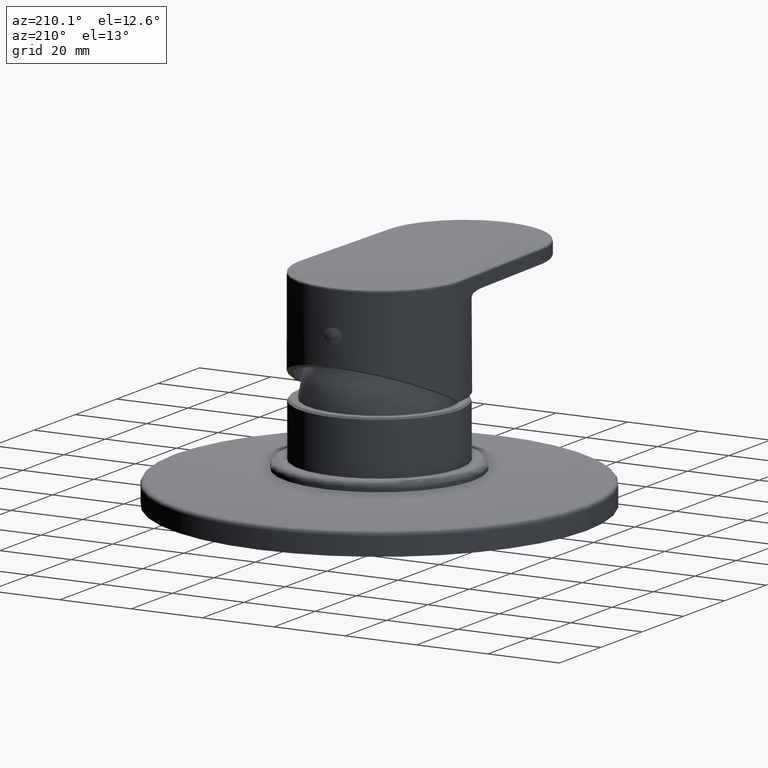
[diagram: clean part render]
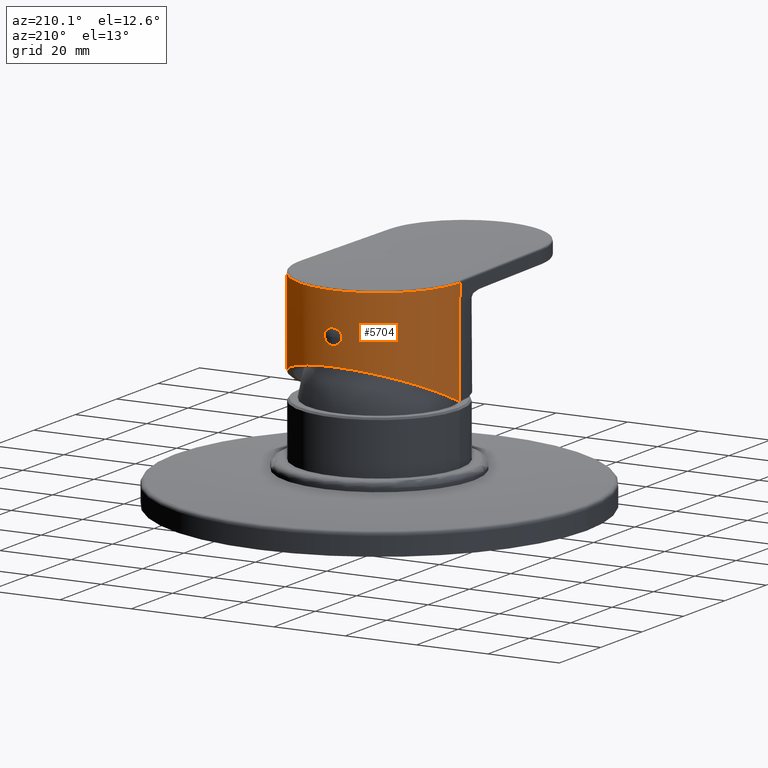
[diagram: same view with one face highlighted and labeled with its STEP entity id]
A machine part, auxiliary view. The second image highlights one B-rep face of the part: STEP entity #5704.
In plain terms, the highlighted cylindrical surface (partial cylindrical patch) has radius 22.5 mm, axis along (0, 0, 1).
Its self-contained STEP definition (entity closure, byte-faithful):
#1937=DIRECTION('',(-5.980859239104E-8,-1.458107658068E-9,-1.E0));
#1938=VECTOR('',#1937,3.542403296453E0);
#1939=CARTESIAN_POINT('',(-2.249330634756E1,-5.487804826397E-1,
9.764240329645E1));
#1940=LINE('',#1939,#1938);
#1946=CARTESIAN_POINT('',(-2.249330634756E1,-5.487804826397E-1,
9.764240329645E1));
#2220=CARTESIAN_POINT('',(-2.25E1,0.E0,6.81E1));
#2221=CARTESIAN_POINT('',(-2.25E1,1.325825214725E0,6.871824245100E1));
#2222=CARTESIAN_POINT('',(-2.226447864994E1,4.076727832883E0,7.000100940869E1));
#2223=CARTESIAN_POINT('',(-2.107054946146E1,8.307726838463E0,7.197395664664E1));
#2224=CARTESIAN_POINT('',(-1.897474414765E1,1.238515060412E1,7.387529057410E1));
#2225=CARTESIAN_POINT('',(-1.602486796244E1,1.602498745206E1,7.557257437073E1));
#2226=CARTESIAN_POINT('',(-1.299181087938E1,1.848276044853E1,7.671865274099E1));
#2227=CARTESIAN_POINT('',(-1.034642517812E1,2.002323070950E1,7.743698582084E1));
#2228=CARTESIAN_POINT('',(-8.288604896013E0,2.095754007026E1,7.787266143085E1));
#2229=CARTESIAN_POINT('',(-6.191941028680E0,2.166802965291E1,7.820396816428E1));
#2230=CARTESIAN_POINT('',(-4.440315165938E0,2.207733883663E1,7.839483217120E1));
#2231=CARTESIAN_POINT('',(-3.051550533395E0,2.230029653161E1,7.849879905182E1));
#2232=CARTESIAN_POINT('',(-2.019551748512E0,2.241706724339E1,7.855325012897E1));
#2233=CARTESIAN_POINT('',(-1.170418282043E0,2.247396717187E1,7.857978300137E1));
#2234=CARTESIAN_POINT('',(-4.985032226552E-1,2.249633759460E1,
7.859021450080E1));
#2235=CARTESIAN_POINT('',(0.E0,2.250183120270E1,7.859277621233E1));
#2236=CARTESIAN_POINT('',(4.985032226552E-1,2.249633759460E1,7.859021450080E1));
#2237=CARTESIAN_POINT('',(1.170418282043E0,2.247396717187E1,7.857978300137E1));
#2238=CARTESIAN_POINT('',(2.019551748512E0,2.241706724339E1,7.855325012897E1));
#2239=CARTESIAN_POINT('',(3.051550533395E0,2.230029653161E1,7.849879905182E1));
#2240=CARTESIAN_POINT('',(4.440315165938E0,2.207733883663E1,7.839483217120E1));
#2241=CARTESIAN_POINT('',(6.191941028680E0,2.166802965291E1,7.820396816428E1));
#2242=CARTESIAN_POINT('',(8.288604896013E0,2.095754007026E1,7.787266143085E1));
#2243=CARTESIAN_POINT('',(1.034642517812E1,2.002323070950E1,7.743698582084E1));
#2244=CARTESIAN_POINT('',(1.299181087938E1,1.848276044853E1,7.671865274099E1));
#2245=CARTESIAN_POINT('',(1.602486796244E1,1.602498745206E1,7.557257437073E1));
#2246=CARTESIAN_POINT('',(1.897474414765E1,1.238515060412E1,7.387529057410E1));
#2247=CARTESIAN_POINT('',(2.107054946146E1,8.307726838463E0,7.197395664664E1));
#2248=CARTESIAN_POINT('',(2.226447864994E1,4.076727832883E0,7.000100940869E1));
#2249=CARTESIAN_POINT('',(2.25E1,1.325825214725E0,6.871824245100E1));
#2250=CARTESIAN_POINT('',(2.25E1,3.552713678801E-14,6.81E1));
#2252=DIRECTION('',(0.E0,0.E0,1.E0));
#2253=VECTOR('',#2252,2.600000571719E1);
#2254=CARTESIAN_POINT('',(2.25E1,2.895048934320E-14,6.81E1));
#2255=LINE('',#2254,#2253);
#2256=CARTESIAN_POINT('',(2.408632274931E-14,3.202737805202E-14,
9.410000172618E1));
#2257=DIRECTION('',(0.E0,0.E0,1.E0));
#2258=DIRECTION('',(9.997025137522E-1,-2.439024390244E-2,0.E0));
#2259=AXIS2_PLACEMENT_3D('',#2256,#2257,#2258);
#2261=DIRECTION('',(6.912338699274E-8,-1.685774184927E-9,-1.E0));
#2262=VECTOR('',#2261,3.542403296453E0);
#2263=CARTESIAN_POINT('',(2.249330631456E1,-5.487804818331E-1,
9.764240329645E1));
#2264=LINE('',#2263,#2262);
#2265=CARTESIAN_POINT('',(2.186853463011E1,5.293118317487E0,9.763953508417E1));
#2266=CARTESIAN_POINT('',(2.194556361556E1,4.974863543944E0,9.763960613877E1));
#2267=CARTESIAN_POINT('',(2.208572216861E1,4.335046764790E0,9.763976990989E1));
#2268=CARTESIAN_POINT('',(2.225384190714E1,3.367200033612E0,9.764009578610E1));
#2269=CARTESIAN_POINT('',(2.237955030387E1,2.393150853227E0,9.764051663886E1));
#2270=CARTESIAN_POINT('',(2.246264446138E1,1.414591323867E0,9.764103698251E1));
#2271=CARTESIAN_POINT('',(2.250297453052E1,4.332373681889E-1,9.764166269351E1));
#2272=CARTESIAN_POINT('',(2.250128828502E1,-2.215530674555E-1,
9.764214597548E1));
#2273=CARTESIAN_POINT('',(2.249330631456E1,-5.487804818331E-1,
9.764240329645E1));
#2275=CARTESIAN_POINT('',(-2.186853456679E1,5.293118302071E0,9.763953508417E1));
#2276=CARTESIAN_POINT('',(-2.177810749036E1,5.666696260889E0,9.763945211329E1));
#2277=CARTESIAN_POINT('',(-2.157811648833E1,6.409257417803E0,9.763927560537E1));
#2278=CARTESIAN_POINT('',(-2.122137666509E1,7.506445544630E0,9.763900437394E1));
#2279=CARTESIAN_POINT('',(-2.080891534346E1,8.583855833976E0,9.763875824525E1));
#2280=CARTESIAN_POINT('',(-2.034179306998E1,9.638727015897E0,9.763854377681E1));
#2281=CARTESIAN_POINT('',(-1.982115266207E1,1.066844467309E1,9.763835875377E1));
#2282=CARTESIAN_POINT('',(-1.924830460372E1,1.167033356417E1,9.763819465773E1));
#2283=CARTESIAN_POINT('',(-1.862484922650E1,1.264155207434E1,9.763802091230E1));
#2284=CARTESIAN_POINT('',(-1.795248449942E1,1.357947521613E1,9.763783369713E1));
#2285=CARTESIAN_POINT('',(-1.723287172E1,1.448178488007E1,9.763767172185E1));
#2286=CARTESIAN_POINT('',(-1.646787922811E1,1.534610529010E1,9.763755062308E1));
#2287=CARTESIAN_POINT('',(-1.565959006344E1,1.617007219891E1,9.763747617756E1));
#2288=CARTESIAN_POINT('',(-1.481009731139E1,1.695155022809E1,9.763744556896E1));
#2289=CARTESIAN_POINT('',(-1.392162904123E1,1.768847933560E1,9.763743531641E1));
#2290=CARTESIAN_POINT('',(-1.299653787930E1,1.837890298760E1,9.763742575764E1));
#2291=CARTESIAN_POINT('',(-1.203724422446E1,1.902101071710E1,9.763743587507E1));
#2292=CARTESIAN_POINT('',(-1.104626815750E1,1.961310981176E1,9.763749708274E1));
#2293=CARTESIAN_POINT('',(-1.002622009602E1,2.015363599790E1,9.763762036928E1));
#2294=CARTESIAN_POINT('',(-8.979782204680E0,2.064116420851E1,9.763780829310E1));
#2295=CARTESIAN_POINT('',(-7.909709544234E0,2.107440759250E1,9.763805302943E1));
#2296=CARTESIAN_POINT('',(-6.818817008396E0,2.145222382811E1,9.763833062740E1));
#2297=CARTESIAN_POINT('',(-5.709975463241E0,2.177361613079E1,9.763863250557E1));
#2298=CARTESIAN_POINT('',(-4.586104261801E0,2.203773678920E1,9.763899965788E1));
#2299=CARTESIAN_POINT('',(-3.450155994177E0,2.224388911901E1,9.763944502966E1));
#2300=CARTESIAN_POINT('',(-2.305141186932E0,2.239152876034E1,9.764000433081E1));
#2301=CARTESIAN_POINT('',(-1.153992447798E0,2.248026840329E1,9.764058029551E1));
#2302=CARTESIAN_POINT('',(-4.316650390657E-5,2.250986469079E1,
9.764148719254E1));
#2303=CARTESIAN_POINT('',(1.153906129501E0,2.248027283328E1,9.764058035935E1));
#2304=CARTESIAN_POINT('',(2.305055222867E0,2.239153760903E1,9.764000437132E1));
#2305=CARTESIAN_POINT('',(3.450070633978E0,2.224390236577E1,9.763944506787E1));
#2306=CARTESIAN_POINT('',(4.586020406989E0,2.203775425186E1,9.763899968685E1));
#2307=CARTESIAN_POINT('',(5.709893152836E0,2.177363772652E1,9.763863253341E1));
#2308=CARTESIAN_POINT('',(6.818736660747E0,2.145224938365E1,9.763833062925E1));
#2309=CARTESIAN_POINT('',(7.909631514048E0,2.107443689693E1,9.763805306624E1));
#2310=CARTESIAN_POINT('',(8.979706700647E0,2.064119707503E1,9.763780830703E1));
#2311=CARTESIAN_POINT('',(1.002614734914E1,2.015367221063E1,9.763762037389E1));
#2312=CARTESIAN_POINT('',(1.104619846354E1,1.961314909094E1,9.763749712304E1));
#2313=CARTESIAN_POINT('',(1.203717789892E1,1.902105272225E1,9.763743579150E1));
#2314=CARTESIAN_POINT('',(1.299647527385E1,1.837894730468E1,9.763742596027E1));
#2315=CARTESIAN_POINT('',(1.392157048425E1,1.768852545537E1,9.763743505017E1));
#2316=CARTESIAN_POINT('',(1.481004242652E1,1.695159824901E1,9.763744567741E1));
#2317=CARTESIAN_POINT('',(1.565954070525E1,1.617012008235E1,9.763747614481E1));
#2318=CARTESIAN_POINT('',(1.646783349918E1,1.534615437173E1,9.763755056852E1));
#2319=CARTESIAN_POINT('',(1.723282978253E1,1.448183492504E1,9.763767188006E1));
#2320=CARTESIAN_POINT('',(1.795244942409E1,1.357952172489E1,9.763783351979E1));
#2321=CARTESIAN_POINT('',(1.862481677211E1,1.264159982408E1,9.763802051486E1));
#2322=CARTESIAN_POINT('',(1.924827514461E1,1.167038239564E1,9.763819518100E1));
#2323=CARTESIAN_POINT('',(1.982113343968E1,1.066848118104E1,9.763835893296E1));
#2324=CARTESIAN_POINT('',(2.034178561641E1,9.638743587174E0,9.763854349473E1));
#2325=CARTESIAN_POINT('',(2.080891484926E1,8.583857571556E0,9.763875821551E1));
#2326=CARTESIAN_POINT('',(2.122137994393E1,7.506436935484E0,9.763900437609E1));
#2327=CARTESIAN_POINT('',(2.157812103010E1,6.409241595546E0,9.763927557791E1));
#2328=CARTESIAN_POINT('',(2.177810943550E1,5.666689332514E0,9.763945210273E1));
#2329=CARTESIAN_POINT('',(2.186853463011E1,5.293118317487E0,9.763953508417E1));
#2331=CARTESIAN_POINT('',(-2.249330634756E1,-5.487804826397E-1,
9.764240329645E1));
#2332=CARTESIAN_POINT('',(-2.250128820099E1,-2.215615600004E-1,
9.764214597478E1));
#2333=CARTESIAN_POINT('',(-2.250297472058E1,4.332161687681E-1,
9.764166270645E1));
#2334=CARTESIAN_POINT('',(-2.246264607980E1,1.414566189779E0,9.764103700047E1));
#2335=CARTESIAN_POINT('',(-2.237955260578E1,2.393130218704E0,9.764051664247E1));
#2336=CARTESIAN_POINT('',(-2.225384394781E1,3.367187382459E0,9.764009579504E1));
#2337=CARTESIAN_POINT('',(-2.208572311281E1,4.335042603906E0,9.763976990486E1));
#2338=CARTESIAN_POINT('',(-2.194556383616E1,4.974862407648E0,9.763960613831E1));
#2339=CARTESIAN_POINT('',(-2.186853456679E1,5.293118302071E0,9.763953508417E1));
#2341=CARTESIAN_POINT('',(2.408632274931E-14,3.202737805202E-14,
9.410000172618E1));
#2342=DIRECTION('',(0.E0,0.E0,1.E0));
#2343=DIRECTION('',(-1.E0,0.E0,0.E0));
#2344=AXIS2_PLACEMENT_3D('',#2341,#2342,#2343);
#3130=DIRECTION('',(0.E0,0.E0,1.E0));
#3131=VECTOR('',#3130,2.600000571719E1);
#3132=CARTESIAN_POINT('',(-2.25E1,0.E0,6.81E1));
#3133=LINE('',#3132,#3131);
#3372=CARTESIAN_POINT('',(2.464415876409E0,2.236462953836E1,8.61E1));
#3373=CARTESIAN_POINT('',(2.464415876409E0,2.236462953836E1,8.615370968842E1));
#3374=CARTESIAN_POINT('',(2.460049647989E0,2.236511133074E1,8.626098750569E1));
#3375=CARTESIAN_POINT('',(2.440211202020E0,2.236728850080E1,8.642216241031E1));
#3376=CARTESIAN_POINT('',(2.407202711407E0,2.237087157692E1,8.658154697309E1));
#3377=CARTESIAN_POINT('',(2.360865219827E0,2.237581850837E1,8.673939369582E1));
#3378=CARTESIAN_POINT('',(2.301199312039E0,2.238204522036E1,8.689463045303E1));
#3379=CARTESIAN_POINT('',(2.228325876038E0,2.238943263709E1,8.704636610982E1));
#3380=CARTESIAN_POINT('',(2.141838629486E0,2.239788887967E1,8.719450708335E1));
#3381=CARTESIAN_POINT('',(2.042358531955E0,2.240719866338E1,8.733724048965E1));
#3382=CARTESIAN_POINT('',(1.929465727326E0,2.241722418058E1,8.747447324552E1));
#3383=CARTESIAN_POINT('',(1.803786827332E0,2.242771018412E1,8.760465058489E1));
#3384=CARTESIAN_POINT('',(1.665618354717E0,2.243842012757E1,8.772689141619E1));
#3385=CARTESIAN_POINT('',(1.515238363507E0,2.244910245447E1,8.784027084867E1));
#3386=CARTESIAN_POINT('',(1.353672501265E0,2.245945042037E1,8.794345606530E1));
#3387=CARTESIAN_POINT('',(1.181404387310E0,2.246919509862E1,8.803559379867E1));
#3388=CARTESIAN_POINT('',(1.000315966265E0,2.247800870992E1,8.811529848326E1));
#3389=CARTESIAN_POINT('',(8.103510296773E-1,2.248568119963E1,8.818219951142E1));
#3390=CARTESIAN_POINT('',(6.136240767400E-1,2.249192576812E1,8.823509605860E1));
#3391=CARTESIAN_POINT('',(4.121294013123E-1,2.249653177852E1,8.827328737151E1));
#3392=CARTESIAN_POINT('',(2.071973454275E-1,2.249936139429E1,8.829641979060E1));
#3393=CARTESIAN_POINT('',(6.849298878980E-6,2.250031920374E1,8.830419483846E1));
#3394=CARTESIAN_POINT('',(-2.071501425308E-1,2.249936179073E1,
8.829642301682E1));
#3395=CARTESIAN_POINT('',(-4.121080249142E-1,2.249653225063E1,
8.827329125985E1));
#3396=CARTESIAN_POINT('',(-6.136081575327E-1,2.249192620222E1,
8.823509970307E1));
#3397=CARTESIAN_POINT('',(-8.103380239594E-1,2.248568166289E1,
8.818220347391E1));
#3398=CARTESIAN_POINT('',(-1.000294286672E0,2.247800964814E1,8.811530675173E1));
#3399=CARTESIAN_POINT('',(-1.181378522101E0,2.246919646318E1,8.803560639095E1));
#3400=CARTESIAN_POINT('',(-1.353651476731E0,2.245945169954E1,8.794346849770E1));
#3401=CARTESIAN_POINT('',(-1.515219884240E0,2.244910370449E1,8.784028368449E1));
#3402=CARTESIAN_POINT('',(-1.665600948286E0,2.243842142207E1,8.772690563091E1));
#3403=CARTESIAN_POINT('',(-1.803770696068E0,2.242771148410E1,8.760466600935E1));
#3404=CARTESIAN_POINT('',(-1.929451395067E0,2.241722541935E1,8.747448942615E1));
#3405=CARTESIAN_POINT('',(-2.042346864288E0,2.240719972718E1,8.733725575439E1));
#3406=CARTESIAN_POINT('',(-2.141826200801E0,2.239789007141E1,8.719452665762E1));
#3407=CARTESIAN_POINT('',(-2.228318114017E0,2.238943341162E1,8.704638067982E1));
#3408=CARTESIAN_POINT('',(-2.301189693327E0,2.238204620943E1,8.689465252572E1));
#3409=CARTESIAN_POINT('',(-2.360860174043E0,2.237581904507E1,8.673940959706E1));
#3410=CARTESIAN_POINT('',(-2.407200325332E0,2.237087183395E1,8.658155635983E1));
#3411=CARTESIAN_POINT('',(-2.440209238979E0,2.236728871551E1,8.642217515571E1));
#3412=CARTESIAN_POINT('',(-2.460049911685E0,2.236511130205E1,8.626098760969E1));
#3413=CARTESIAN_POINT('',(-2.464415876409E0,2.236462953836E1,8.615370942064E1));
#3414=CARTESIAN_POINT('',(-2.464415876409E0,2.236462953836E1,8.61E1));
#3416=CARTESIAN_POINT('',(-2.464415876409E0,2.236462953836E1,8.61E1));
#3417=CARTESIAN_POINT('',(-2.464415876409E0,2.236462953836E1,8.604627547442E1));
#3418=CARTESIAN_POINT('',(-2.460047441470E0,2.236511157517E1,8.593897424160E1));
#3419=CARTESIAN_POINT('',(-2.440201150073E0,2.236728959863E1,8.577777658589E1));
#3420=CARTESIAN_POINT('',(-2.407189958744E0,2.237087295423E1,8.561840086012E1));
#3421=CARTESIAN_POINT('',(-2.360839123416E0,2.237582127121E1,8.546052745647E1));
#3422=CARTESIAN_POINT('',(-2.301166290698E0,2.238204861984E1,8.530529364236E1));
#3423=CARTESIAN_POINT('',(-2.228289109107E0,2.238943630039E1,8.515356490604E1));
#3424=CARTESIAN_POINT('',(-2.141798874293E0,2.239789268453E1,8.500543101961E1));
#3425=CARTESIAN_POINT('',(-2.042316989866E0,2.240720245240E1,8.486270494325E1));
#3426=CARTESIAN_POINT('',(-1.929422781256E0,2.241722787827E1,8.472547881217E1));
#3427=CARTESIAN_POINT('',(-1.803743843368E0,2.242771364045E1,8.459530848340E1));
#3428=CARTESIAN_POINT('',(-1.665576114084E0,2.243842325992E1,8.447307427406E1));
#3429=CARTESIAN_POINT('',(-1.515198021532E0,2.244910517313E1,8.435970130655E1));
#3430=CARTESIAN_POINT('',(-1.353633882493E0,2.245945274263E1,8.425652147472E1));
#3431=CARTESIAN_POINT('',(-1.181369244499E0,2.246919693265E1,8.416438932706E1));
#3432=CARTESIAN_POINT('',(-1.000288123527E0,2.247800992347E1,8.408469080855E1));
#3433=CARTESIAN_POINT('',(-8.103326514251E-1,2.248568183853E1,
8.401779503612E1));
#3434=CARTESIAN_POINT('',(-6.136128673893E-1,2.249192605E1,8.396490158923E1));
#3435=CARTESIAN_POINT('',(-4.121203871267E-1,2.249653198013E1,
8.392671096866E1));
#3436=CARTESIAN_POINT('',(-2.071775196713E-1,2.249936153338E1,
8.390357907833E1));
#3437=CARTESIAN_POINT('',(-1.500830887658E-5,2.250031918260E1,
8.389580533284E1));
#3438=CARTESIAN_POINT('',(2.071563015720E-1,2.249936173619E1,8.390357742910E1));
#3439=CARTESIAN_POINT('',(4.120901037819E-1,2.249653250320E1,8.392670667688E1));
#3440=CARTESIAN_POINT('',(6.135797855086E-1,2.249192696415E1,8.396489393806E1));
#3441=CARTESIAN_POINT('',(8.103052429524E-1,2.248568283606E1,8.401778647147E1));
#3442=CARTESIAN_POINT('',(1.000260735601E0,2.247801114077E1,8.408468002560E1));
#3443=CARTESIAN_POINT('',(1.181343641603E0,2.246919828935E1,8.416437678639E1));
#3444=CARTESIAN_POINT('',(1.353612658157E0,2.245945402904E1,8.425650899067E1));
#3445=CARTESIAN_POINT('',(1.515177801772E0,2.244910653889E1,8.435968729626E1));
#3446=CARTESIAN_POINT('',(1.665557077157E0,2.243842467669E1,8.447305870906E1));
#3447=CARTESIAN_POINT('',(1.803726618153E0,2.242771502910E1,8.459529199848E1));
#3448=CARTESIAN_POINT('',(1.929407522551E0,2.241722919682E1,8.472546159641E1));
#3449=CARTESIAN_POINT('',(2.042304417284E0,2.240720359871E1,8.486268849158E1));
#3450=CARTESIAN_POINT('',(2.141785608626E0,2.239789395645E1,8.500541013780E1));
#3451=CARTESIAN_POINT('',(2.228280646666E0,2.238943714479E1,8.515354901571E1));
#3452=CARTESIAN_POINT('',(2.301156112310E0,2.238204966660E1,8.530527026688E1));
#3453=CARTESIAN_POINT('',(2.360833690175E0,2.237582184891E1,8.546051039680E1));
#3454=CARTESIAN_POINT('',(2.407187300483E0,2.237087324059E1,8.561839038872E1));
#3455=CARTESIAN_POINT('',(2.440198984454E0,2.236728983549E1,8.577776263368E1));
#3456=CARTESIAN_POINT('',(2.460047629436E0,2.236511155484E1,8.593897303963E1));
#3457=CARTESIAN_POINT('',(2.464415876409E0,2.236462953836E1,8.604627530257E1));
#3458=CARTESIAN_POINT('',(2.464415876409E0,2.236462953836E1,8.61E1));
#3479=VERTEX_POINT('',#2220);
#3480=VERTEX_POINT('',#2250);
#3564=CARTESIAN_POINT('',(2.249330655942E1,-5.487804878048E-1,
9.410000172618E1));
#3565=CARTESIAN_POINT('',(2.25E1,4.823663421155E-14,9.410000172618E1));
#3566=VERTEX_POINT('',#3564);
#3567=VERTEX_POINT('',#3565);
#3568=CARTESIAN_POINT('',(-2.25E1,1.586614732250E-14,9.410000172618E1));
#3569=CARTESIAN_POINT('',(-2.249330655942E1,-5.487804878049E-1,
9.410000172618E1));
#3570=VERTEX_POINT('',#3568);
#3571=VERTEX_POINT('',#3569);
#3590=VERTEX_POINT('',#1946);
#3592=VERTEX_POINT('',#2339);
#3594=VERTEX_POINT('',#2329);
#3596=VERTEX_POINT('',#2273);
#3696=VERTEX_POINT('',#3372);
#3697=VERTEX_POINT('',#3414);
#5674=CARTESIAN_POINT('',(1.682398140121E-14,1.204703348084E-14,6.81E1));
#5675=DIRECTION('',(0.E0,0.E0,1.E0));
#5676=DIRECTION('',(1.E0,0.E0,0.E0));
#5677=AXIS2_PLACEMENT_3D('',#5674,#5675,#5676);
#5678=CYLINDRICAL_SURFACE('',#5677,2.25E1);
#5680=ORIENTED_EDGE('',*,*,#5679,.T.);
#5682=ORIENTED_EDGE('',*,*,#5681,.T.);
#5684=ORIENTED_EDGE('',*,*,#5683,.F.);
#5685=ORIENTED_EDGE('',*,*,#5363,.F.);
#5687=ORIENTED_EDGE('',*,*,#5686,.F.);
#5689=ORIENTED_EDGE('',*,*,#5688,.F.);
#5690=ORIENTED_EDGE('',*,*,#5657,.F.);
#5691=ORIENTED_EDGE('',*,*,#4992,.T.);
#5693=ORIENTED_EDGE('',*,*,#5692,.F.);
#5695=ORIENTED_EDGE('',*,*,#5694,.F.);
#5696=EDGE_LOOP('',(#5680,#5682,#5684,#5685,#5687,#5689,#5690,#5691,#5693,
#5695));
#5697=FACE_OUTER_BOUND('',#5696,.F.);
#5699=ORIENTED_EDGE('',*,*,#5698,.F.);
#5701=ORIENTED_EDGE('',*,*,#5700,.F.);
#5702=EDGE_LOOP('',(#5699,#5701));
#5703=FACE_BOUND('',#5702,.F.);
#5704=ADVANCED_FACE('',(#5697,#5703),#5678,.T.);
#2251=B_SPLINE_CURVE_WITH_KNOTS('',3,(#2220,#2221,#2222,#2223,#2224,#2225,#2226,
#2227,#2228,#2229,#2230,#2231,#2232,#2233,#2234,#2235,#2236,#2237,#2238,#2239,
#2240,#2241,#2242,#2243,#2244,#2245,#2246,#2247,#2248,#2249,#2250),
.UNSPECIFIED.,.F.,.F.,(4,1,1,1,1,1,1,1,1,1,1,1,1,1,1,1,1,1,1,1,1,1,1,1,1,1,1,1,
4),(0.E0,6.25E-2,1.25E-1,1.875E-1,2.5E-1,3.125E-1,3.4375E-1,3.75E-1,4.0625E-1,
4.375E-1,4.53125E-1,4.6875E-1,4.84375E-1,4.921875E-1,5.E-1,5.078125E-1,
5.15625E-1,5.3125E-1,5.46875E-1,5.625E-1,5.9375E-1,6.25E-1,6.5625E-1,6.875E-1,
7.5E-1,8.125E-1,8.75E-1,9.375E-1,1.E0),.UNSPECIFIED.);
#2260=CIRCLE('',#2259,2.25E1);
#2274=B_SPLINE_CURVE_WITH_KNOTS('',3,(#2265,#2266,#2267,#2268,#2269,#2270,#2271,
#2272,#2273),.UNSPECIFIED.,.F.,.F.,(4,1,1,1,1,1,4),(0.E0,1.666666666667E-1,
3.333333333333E-1,5.E-1,6.666666666667E-1,8.333333333333E-1,1.E0),
.UNSPECIFIED.);
#2330=B_SPLINE_CURVE_WITH_KNOTS('',3,(#2275,#2276,#2277,#2278,#2279,#2280,#2281,
#2282,#2283,#2284,#2285,#2286,#2287,#2288,#2289,#2290,#2291,#2292,#2293,#2294,
#2295,#2296,#2297,#2298,#2299,#2300,#2301,#2302,#2303,#2304,#2305,#2306,#2307,
#2308,#2309,#2310,#2311,#2312,#2313,#2314,#2315,#2316,#2317,#2318,#2319,#2320,
#2321,#2322,#2323,#2324,#2325,#2326,#2327,#2328,#2329),.UNSPECIFIED.,.F.,.F.,(4,
1,1,1,1,1,1,1,1,1,1,1,1,1,1,1,1,1,1,1,1,1,1,1,1,1,1,1,1,1,1,1,1,1,1,1,1,1,1,1,1,
1,1,1,1,1,1,1,1,1,1,1,4),(0.E0,1.923076923077E-2,3.846153846154E-2,
5.769230769231E-2,7.692307692308E-2,9.615384615385E-2,1.153846153846E-1,
1.346153846154E-1,1.538461538462E-1,1.730769230769E-1,1.923076923077E-1,
2.115384615385E-1,2.307692307692E-1,2.5E-1,2.692307692308E-1,2.884615384615E-1,
3.076923076923E-1,3.269230769231E-1,3.461538461538E-1,3.653846153846E-1,
3.846153846154E-1,4.038461538462E-1,4.230769230769E-1,4.423076923077E-1,
4.615384615385E-1,4.807692307692E-1,5.E-1,5.192307692308E-1,5.384615384615E-1,
5.576923076923E-1,5.769230769231E-1,5.961538461538E-1,6.153846153846E-1,
6.346153846154E-1,6.538461538462E-1,6.730769230769E-1,6.923076923077E-1,
7.115384615385E-1,7.307692307692E-1,7.5E-1,7.692307692308E-1,7.884615384615E-1,
8.076923076923E-1,8.269230769231E-1,8.461538461538E-1,8.653846153846E-1,
8.846153846154E-1,9.038461538462E-1,9.230769230769E-1,9.423076923077E-1,
9.615384615385E-1,9.807692307692E-1,1.E0),.UNSPECIFIED.);
#2340=B_SPLINE_CURVE_WITH_KNOTS('',3,(#2331,#2332,#2333,#2334,#2335,#2336,#2337,
#2338,#2339),.UNSPECIFIED.,.F.,.F.,(4,1,1,1,1,1,4),(0.E0,1.666666666667E-1,
3.333333333333E-1,5.E-1,6.666666666667E-1,8.333333333333E-1,1.E0),
.UNSPECIFIED.);
#2345=CIRCLE('',#2344,2.25E1);
#3415=B_SPLINE_CURVE_WITH_KNOTS('',3,(#3372,#3373,#3374,#3375,#3376,#3377,#3378,
#3379,#3380,#3381,#3382,#3383,#3384,#3385,#3386,#3387,#3388,#3389,#3390,#3391,
#3392,#3393,#3394,#3395,#3396,#3397,#3398,#3399,#3400,#3401,#3402,#3403,#3404,
#3405,#3406,#3407,#3408,#3409,#3410,#3411,#3412,#3413,#3414),.UNSPECIFIED.,.F.,
.F.,(4,1,1,1,1,1,1,1,1,1,1,1,1,1,1,1,1,1,1,1,1,1,1,1,1,1,1,1,1,1,1,1,1,1,1,1,1,
1,1,1,4),(0.E0,2.5E-2,5.E-2,7.5E-2,1.E-1,1.25E-1,1.5E-1,1.75E-1,2.E-1,2.25E-1,
2.5E-1,2.75E-1,3.E-1,3.25E-1,3.5E-1,3.75E-1,4.E-1,4.25E-1,4.5E-1,4.75E-1,5.E-1,
5.25E-1,5.5E-1,5.75E-1,6.E-1,6.25E-1,6.5E-1,6.75E-1,7.E-1,7.25E-1,7.5E-1,
7.75E-1,8.E-1,8.25E-1,8.5E-1,8.75E-1,9.E-1,9.25E-1,9.5E-1,9.75E-1,1.E0),
.UNSPECIFIED.);
#3459=B_SPLINE_CURVE_WITH_KNOTS('',3,(#3416,#3417,#3418,#3419,#3420,#3421,#3422,
#3423,#3424,#3425,#3426,#3427,#3428,#3429,#3430,#3431,#3432,#3433,#3434,#3435,
#3436,#3437,#3438,#3439,#3440,#3441,#3442,#3443,#3444,#3445,#3446,#3447,#3448,
#3449,#3450,#3451,#3452,#3453,#3454,#3455,#3456,#3457,#3458),.UNSPECIFIED.,.F.,
.F.,(4,1,1,1,1,1,1,1,1,1,1,1,1,1,1,1,1,1,1,1,1,1,1,1,1,1,1,1,1,1,1,1,1,1,1,1,1,
1,1,1,4),(0.E0,2.5E-2,5.E-2,7.5E-2,1.E-1,1.25E-1,1.5E-1,1.75E-1,2.E-1,2.25E-1,
2.5E-1,2.75E-1,3.E-1,3.25E-1,3.5E-1,3.75E-1,4.E-1,4.25E-1,4.5E-1,4.75E-1,5.E-1,
5.25E-1,5.5E-1,5.75E-1,6.E-1,6.25E-1,6.5E-1,6.75E-1,7.E-1,7.25E-1,7.5E-1,
7.75E-1,8.E-1,8.25E-1,8.5E-1,8.75E-1,9.E-1,9.25E-1,9.5E-1,9.75E-1,1.E0),
.UNSPECIFIED.);
#4992=EDGE_CURVE('',#3590,#3571,#1940,.T.);
#5363=EDGE_CURVE('',#3596,#3566,#2264,.T.);
#5657=EDGE_CURVE('',#3590,#3592,#2340,.T.);
#5679=EDGE_CURVE('',#3479,#3480,#2251,.T.);
#5681=EDGE_CURVE('',#3480,#3567,#2255,.T.);
#5683=EDGE_CURVE('',#3566,#3567,#2260,.T.);
#5686=EDGE_CURVE('',#3594,#3596,#2274,.T.);
#5688=EDGE_CURVE('',#3592,#3594,#2330,.T.);
#5692=EDGE_CURVE('',#3570,#3571,#2345,.T.);
#5694=EDGE_CURVE('',#3479,#3570,#3133,.T.);
#5698=EDGE_CURVE('',#3696,#3697,#3415,.T.);
#5700=EDGE_CURVE('',#3697,#3696,#3459,.T.);